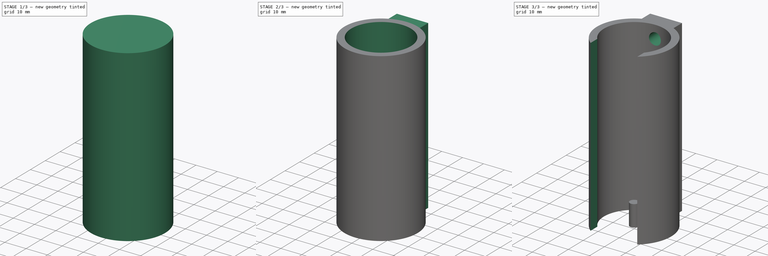
[diagram: build sequence overview — one tinted view per stage of 3, left to right]
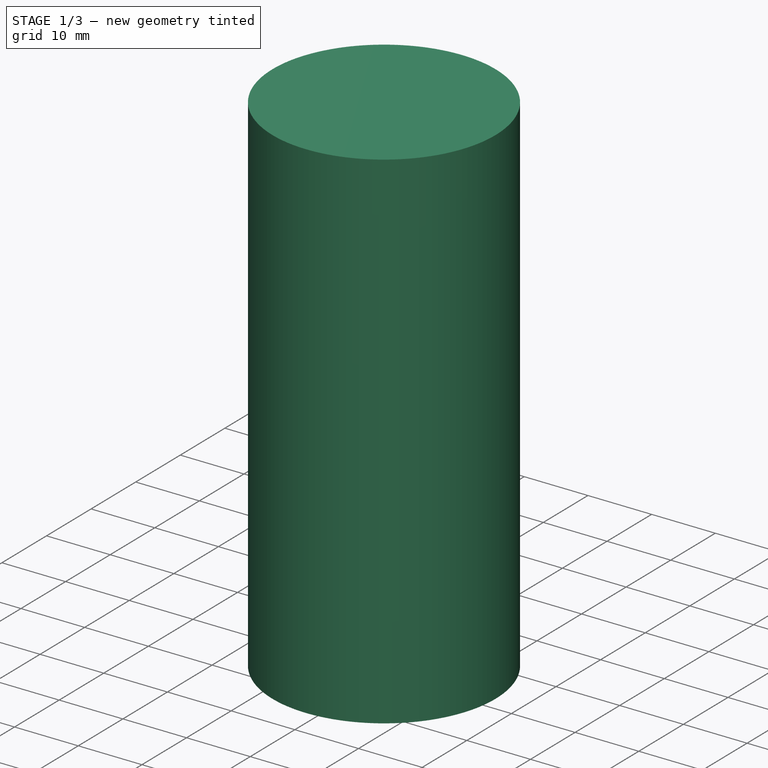
[diagram: stage 1 of 3 — iso view after this stage's code; geometry added in this stage tinted green]
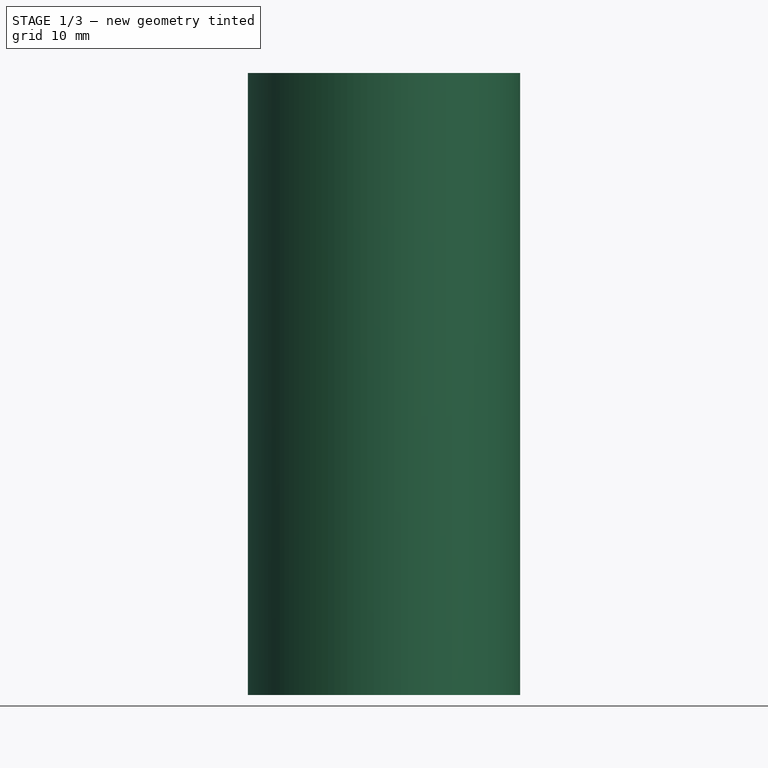
[diagram: stage 1 of 3 — front view after this stage's code; geometry added in this stage tinted green]
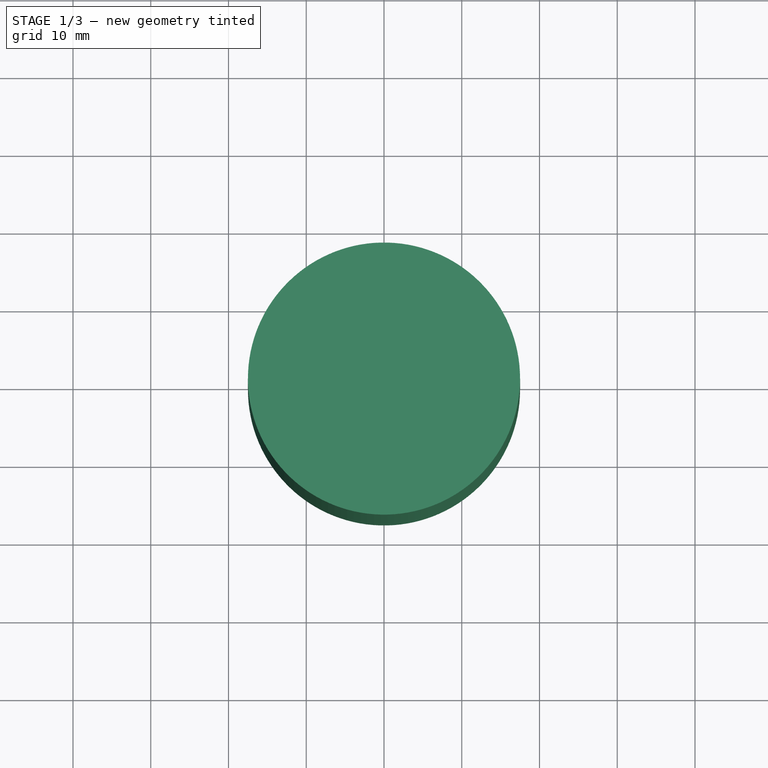
[diagram: stage 1 of 3 — top view after this stage's code; geometry added in this stage tinted green]
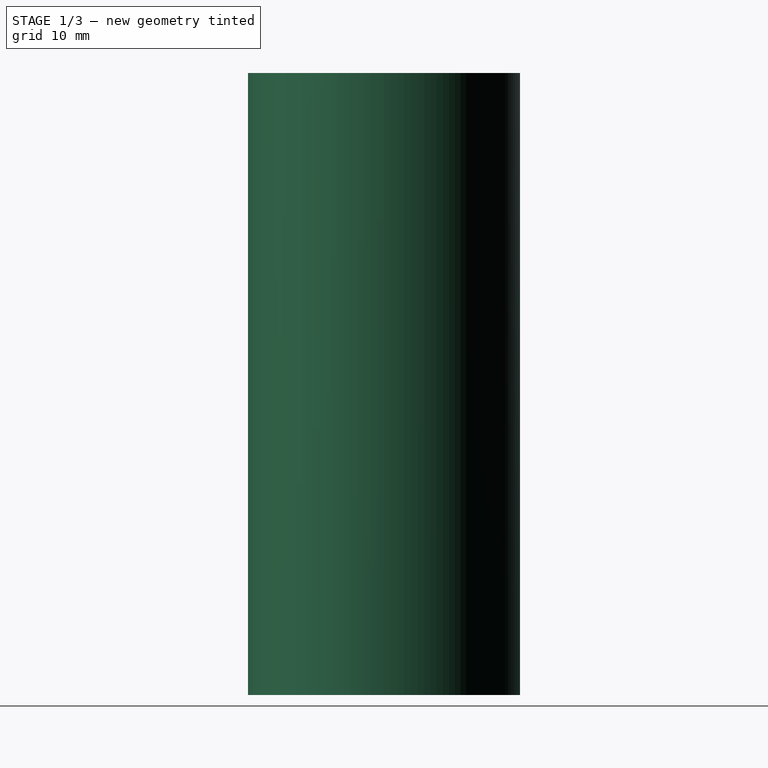
[diagram: stage 1 of 3 — right view after this stage's code; geometry added in this stage tinted green]
FCSTD DOCUMENT  (FreeCAD 0.16R)
Label: PumpHolder2
License: All rights reserved
LicenseURL: http://en.wikipedia.org/wiki/All_rights_reserved
objects: Sketcher::SketchObject×6, PartDesign::Pocket×4, PartDesign::Pad×2, Part::Cylinder×2
note: 20 computed .brp shape members not serialized (recipe doc carries the construction recipe); baked Part::Feature solids carry a one-line shape summary decoded from their .brp

FEATURE [Sketcher::SketchObject] Sketch
  sketch-geometry (1):
    g0: Circle CenterX=0 CenterY=0 CenterZ=0 NormalX=0 NormalY=0 NormalZ=1 Radius=17.5
  constraints (2):
    c: Coincident(g0,g-1)
    c: Radius(g0) = 17.5
FEATURE [PartDesign::Pad] Pad
  Length = 80
  Length2 = 100
  Sketch = -> Sketch
  Type = 0
FEATURE [Part::Cylinder] Cylinder
  Angle = 360
  Height = 10
  Radius = 2
FEATURE [Part::Cylinder] Cylinder001
  Angle = 360
  Height = 10
  Radius = 2
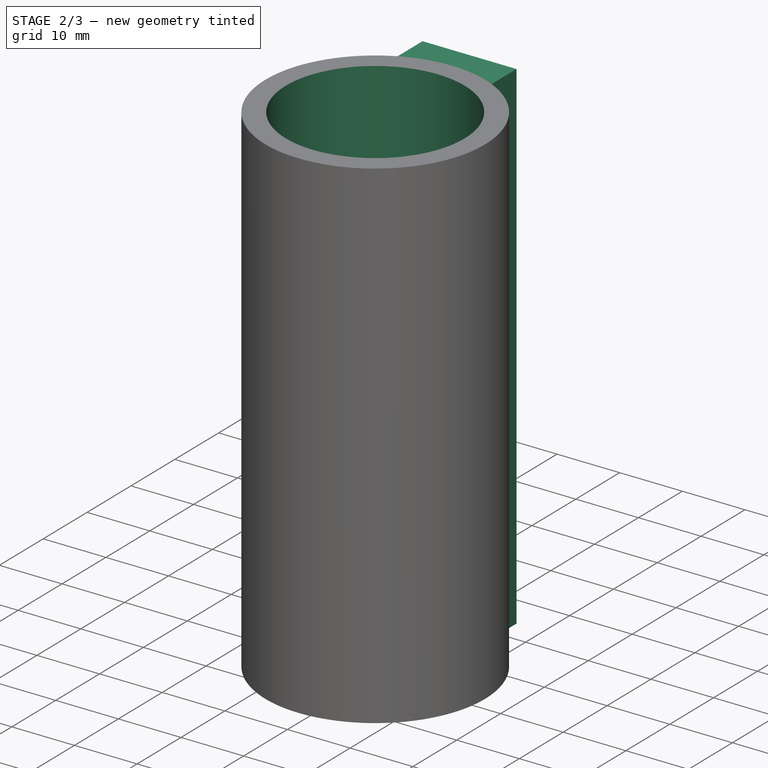
[diagram: stage 2 of 3 — iso view after this stage's code; geometry added in this stage tinted green]
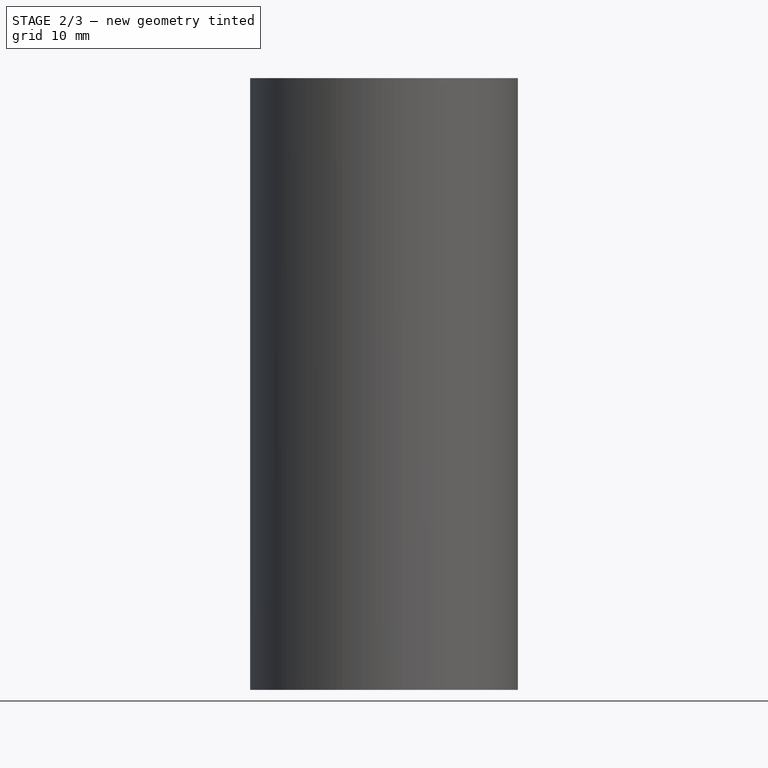
[diagram: stage 2 of 3 — front view after this stage's code; geometry added in this stage tinted green]
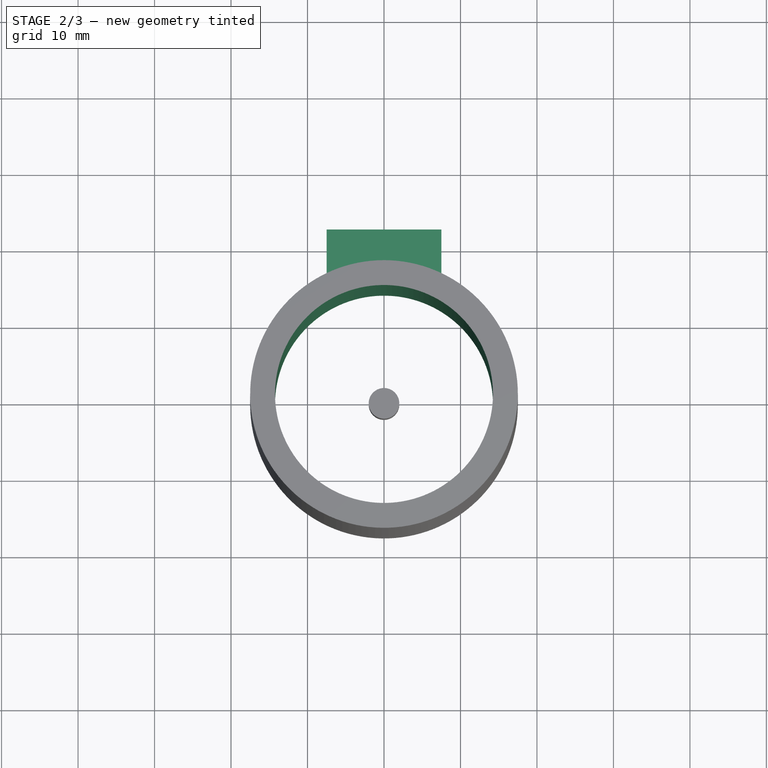
[diagram: stage 2 of 3 — top view after this stage's code; geometry added in this stage tinted green]
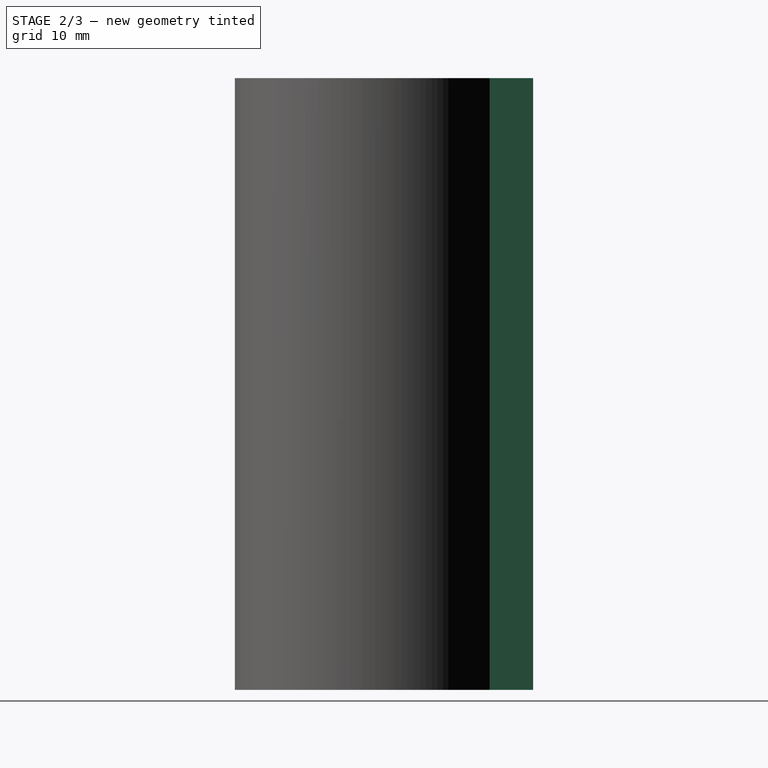
[diagram: stage 2 of 3 — right view after this stage's code; geometry added in this stage tinted green]
FEATURE [Sketcher::SketchObject] Sketch001
  Placement = pos=(0,0,80) rot=(0,0,1;0rad)
  Support = -> Pad [Face3]
  sketch-geometry (1):
    g0: Circle CenterX=0 CenterY=0 CenterZ=0 NormalX=0 NormalY=0 NormalZ=1 Radius=14.25
  constraints (2):
    c: Coincident(g0,g-1)
    c: Radius(g0) = 14.25
FEATURE [PartDesign::Pocket] Pocket
  Length = 5
  Sketch = -> Sketch001
  Type = 1
FEATURE [Sketcher::SketchObject] Sketch002
  Placement = pos=(0,0,80) rot=(0,0,1;0rad)
  Support = -> Pocket [Face3]
  sketch-geometry (4):
    g0: LineSegment StartX=-7.5 StartY=15.5 StartZ=0 EndX=7.5 EndY=15.5 EndZ=0
    g1: LineSegment StartX=7.5 StartY=15.5 StartZ=0 EndX=7.5 EndY=21.5 EndZ=0
    g2: LineSegment StartX=7.5 StartY=21.5 StartZ=0 EndX=-7.5 EndY=21.5 EndZ=0
    g3: LineSegment StartX=-7.5 StartY=21.5 StartZ=0 EndX=-7.5 EndY=15.5 EndZ=0
  constraints (12):
    c: Coincident(g0,g1)
    c: Coincident(g1,g2)
    c: Coincident(g2,g3)
    c: Coincident(g3,g0)
    c: Horizontal(g0)
    c: Horizontal(g2)
    c: Vertical(g1)
    c: Vertical(g3)
    c: Symmetric(g0,g0,g-2)
    c: Distance(g2) = 15
    c: Distance(g1) = 6
    c: DistanceY(g1) = 21.5
FEATURE [PartDesign::Pad] Pad001
  Length = 80
  Length2 = 100
  Reversed = true
  Sketch = -> Sketch002
  Type = 0
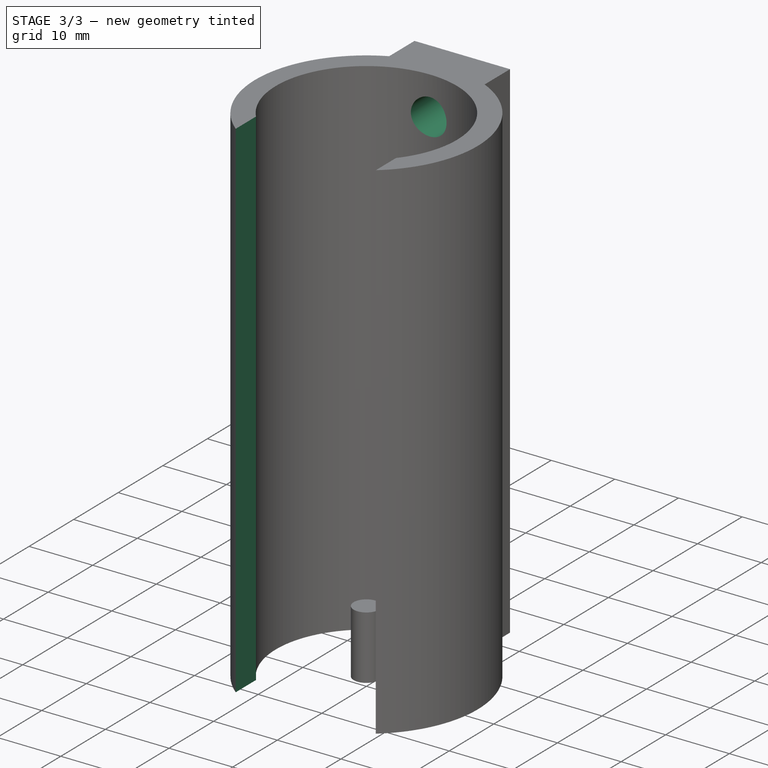
[diagram: stage 3 of 3 — iso view after this stage's code; geometry added in this stage tinted green]
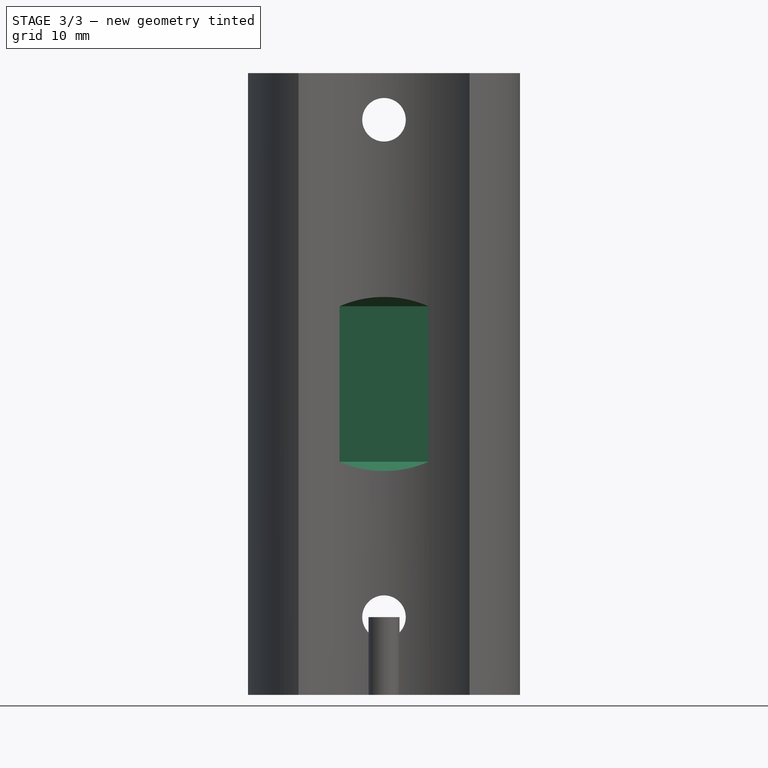
[diagram: stage 3 of 3 — front view after this stage's code; geometry added in this stage tinted green]
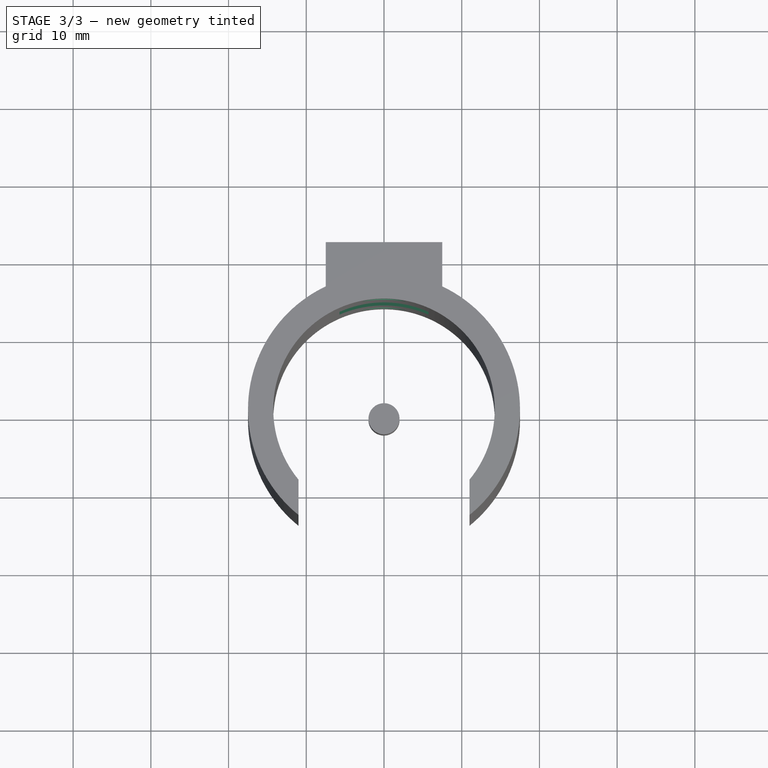
[diagram: stage 3 of 3 — top view after this stage's code; geometry added in this stage tinted green]
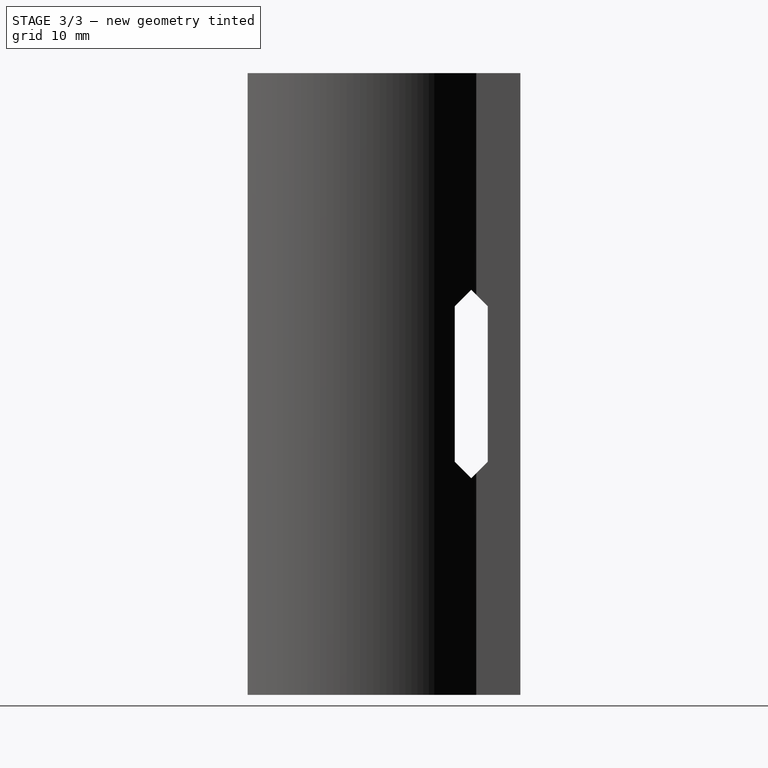
[diagram: stage 3 of 3 — right view after this stage's code; geometry added in this stage tinted green]
FEATURE [Sketcher::SketchObject] Sketch003
  Placement = pos=(0,0,80) rot=(0,0,1;0rad)
  Support = -> Pad001 [Face2]
  sketch-geometry (4):
    g0: LineSegment StartX=-11 StartY=0 StartZ=0 EndX=11 EndY=0 EndZ=0
    g1: LineSegment StartX=11 StartY=0 StartZ=0 EndX=11 EndY=-25 EndZ=0
    g2: LineSegment StartX=11 StartY=-25 StartZ=0 EndX=-11 EndY=-25 EndZ=0
    g3: LineSegment StartX=-11 StartY=-25 StartZ=0 EndX=-11 EndY=0 EndZ=0
  constraints (12):
    c: Coincident(g0,g1)
    c: Coincident(g1,g2)
    c: Coincident(g2,g3)
    c: Coincident(g3,g0)
    c: Horizontal(g0)
    c: Horizontal(g2)
    c: Vertical(g1)
    c: Vertical(g3)
    c: Symmetric(g0,g0,g-2)
    c: Distance(g0) = 22
    c: PointOnObject(g0,g-1)
    c: Distance(g1) = 25
FEATURE [PartDesign::Pocket] Pocket001
  Length = 5
  Sketch = -> Sketch003
  Type = 1
FEATURE [Sketcher::SketchObject] Sketch004
  Placement = pos=(0,21.5,0) rot=(0,0.707107,0.707107;3.14159rad)
  Support = -> Pocket001 [Face16]
  sketch-geometry (2):
    g0: Circle CenterX=0 CenterY=74 CenterZ=0 NormalX=0 NormalY=0 NormalZ=1 Radius=2.8
    g1: Circle CenterX=0 CenterY=10 CenterZ=0 NormalX=0 NormalY=0 NormalZ=1 Radius=2.8
  constraints (6):
    c: DistanceY(g1) = 10
    c: DistanceY(g0) = 74
    c: PointOnObject(g0,g-2)
    c: PointOnObject(g1,g-2)
    c: Radius(g1) = 2.8
    c: Radius(g0) = 2.8
FEATURE [PartDesign::Pocket] Pocket002
  Length = 5
  Sketch = -> Sketch004
  Type = 1
FEATURE [Sketcher::SketchObject] Sketch005
  Placement = pos=(-6,0,0) rot=(0.57735,-0.57735,-0.57735;2.0944rad)
  Support = -> Pocket002 [Face21]
  sketch-geometry (6):
    g0: LineSegment StartX=-15.1693 StartY=52.1213 StartZ=0 EndX=-17.2906 EndY=50 EndZ=0
    g1: LineSegment StartX=-17.2906 StartY=50 StartZ=0 EndX=-17.2906 EndY=30 EndZ=0
    g2: LineSegment StartX=-17.2906 StartY=30 StartZ=0 EndX=-15.1693 EndY=27.8787 EndZ=0
    g3: LineSegment StartX=-15.1693 StartY=27.8787 StartZ=0 EndX=-13.0479 EndY=30 EndZ=0
    g4: LineSegment StartX=-13.0479 StartY=30 StartZ=0 EndX=-13.0479 EndY=50 EndZ=0
    g5: LineSegment StartX=-13.0479 StartY=50 StartZ=0 EndX=-15.1693 EndY=52.1213 EndZ=0
  constraints (17):
    c: Coincident(g0,g1)
    c: Vertical(g1)
    c: Coincident(g1,g2)
    c: Coincident(g2,g3)
    c: Coincident(g3,g4)
    c: Vertical(g4)
    c: Coincident(g4,g5)
    c: Coincident(g5,g0)
    c: Angle(g0,g5) = 1.5708
    c: Angle(g3,g2) = 1.5708
    c: Equal(g3,g2)
    c: Equal(g2,g0)
    c: Equal(g0,g5)
    c: Distance(g4) = 20
    c: Distance(g5) = 3
    c: Angle(g3) = 0.785398
    c: DistanceY(g0) = 50
FEATURE [PartDesign::Pocket] Pocket003
  Length = 50
  Midplane = true
  Sketch = -> Sketch005
  Type = 0
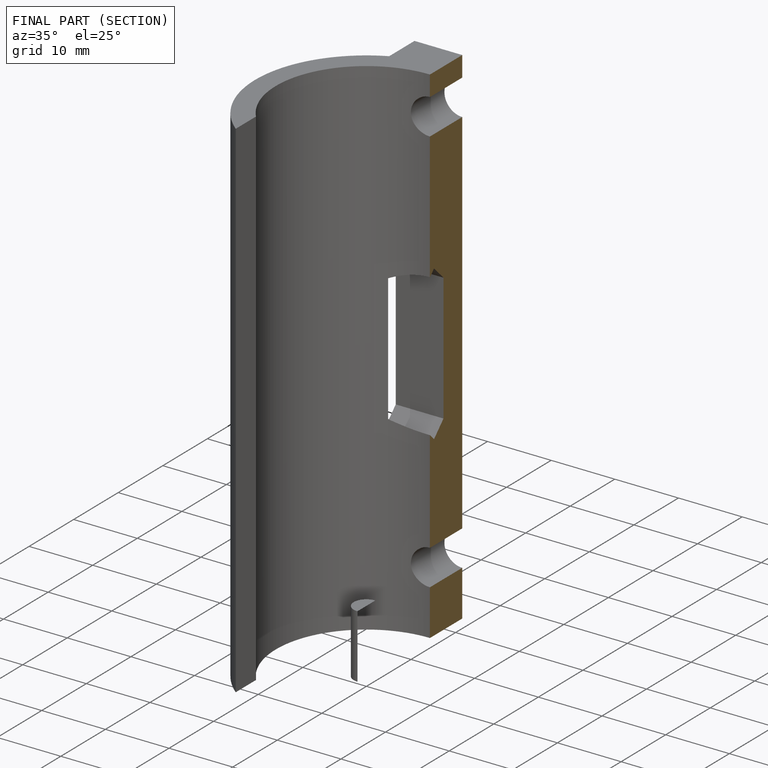
[diagram: finished part — half-section view (interior)]
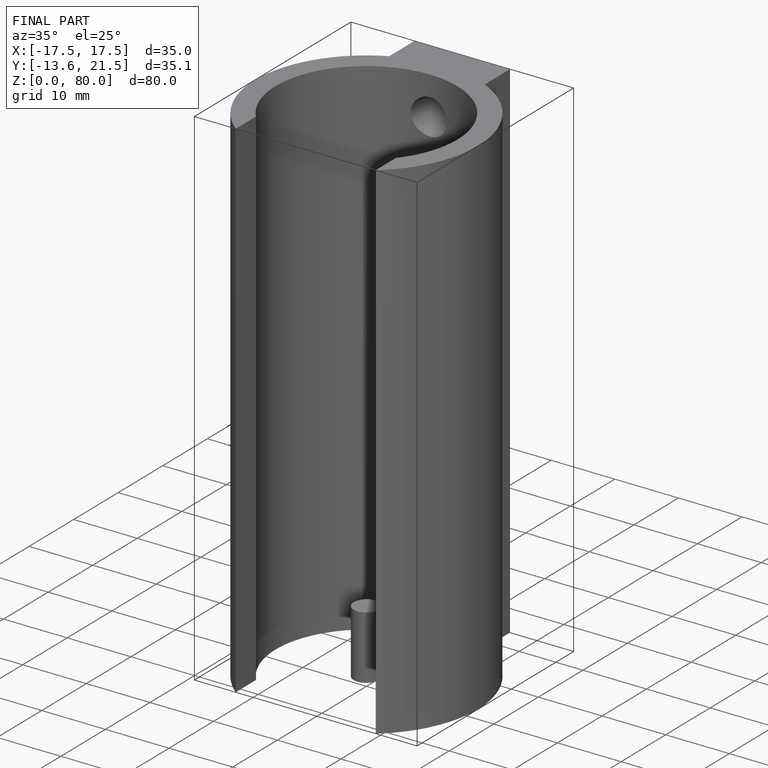
[diagram: finished part — iso view with bounding-box wireframe]
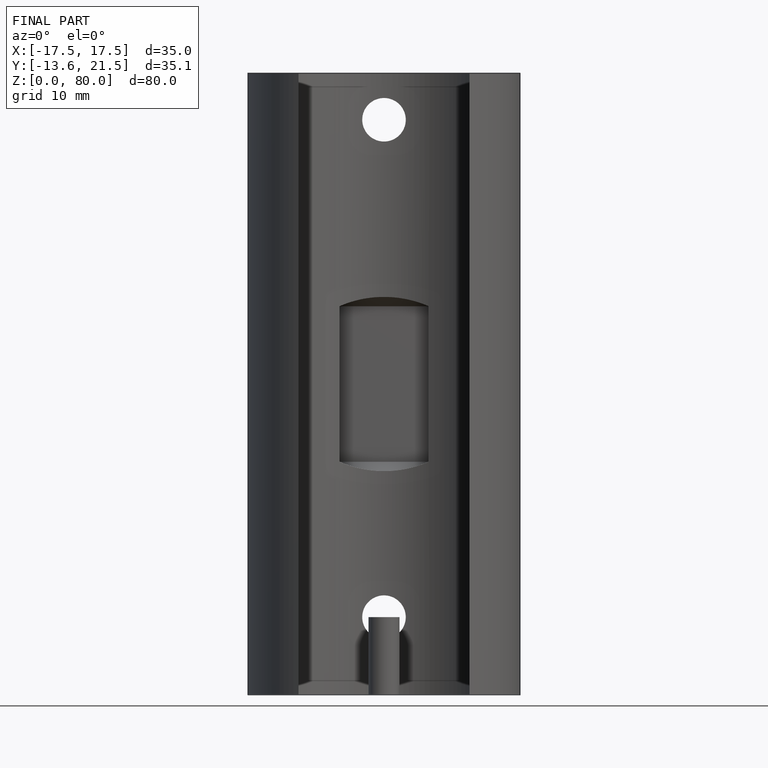
[diagram: finished part — front view with bounding-box wireframe]
